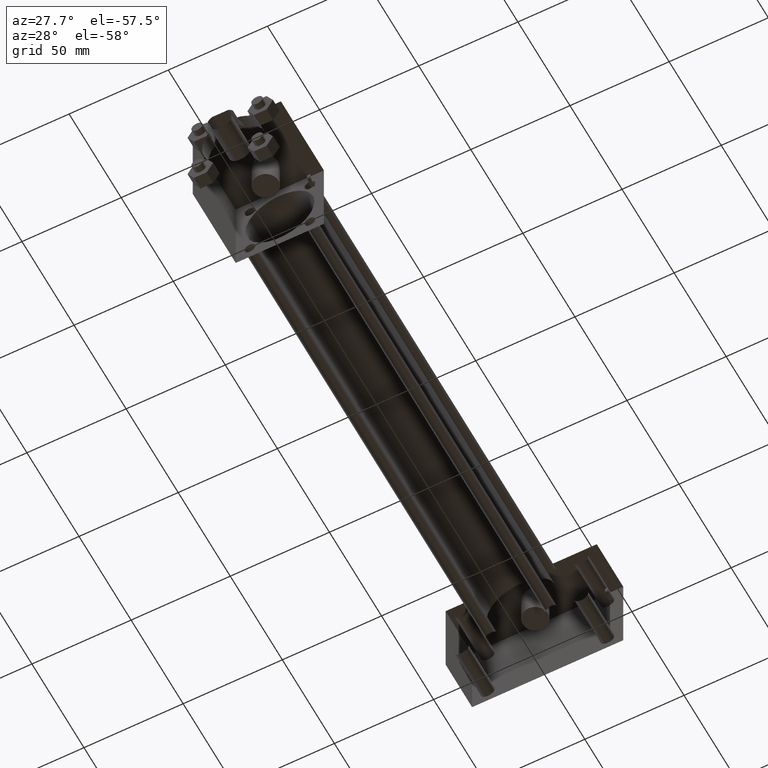
[diagram: clean part render]
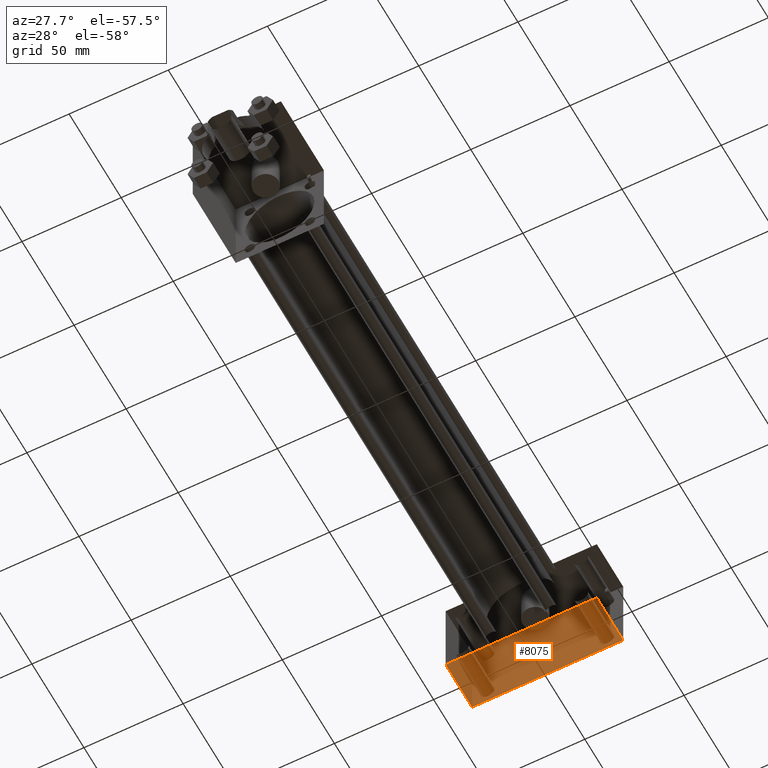
[diagram: same view with one face highlighted and labeled with its STEP entity id]
A machine part, auxiliary view. The second image highlights one B-rep face of the part: STEP entity #8075.
In plain terms, the highlighted planar face has unit normal (0, 0, -1).
Its self-contained STEP definition (entity closure, byte-faithful):
#3442=EDGE_CURVE('',#3447,#3448,#3443,.T.);
#3443=LINE('',#3444,#3445);
#3444=CARTESIAN_POINT('',(-3.810000000E+001,2.889250000E+002,-2.222500000E+001));
#3445=VECTOR('',#3446,1.0E+000);
#3446=DIRECTION('',(1.0E+000,0.0E+000,0.0E+000));
#3447=VERTEX_POINT('',#3449);
#3448=VERTEX_POINT('',#3450);
#3449=CARTESIAN_POINT('',(-3.810000000E+001,2.889250000E+002,-2.222500000E+001));
#3450=CARTESIAN_POINT('',(3.810000000E+001,2.889250000E+002,-2.222500000E+001));
#3646=VERTEX_POINT('',#3648);
#3648=CARTESIAN_POINT('',(-3.810000000E+001,3.143250000E+002,-2.222500000E+001));
#3649=EDGE_CURVE('',#3646,#3447,#3650,.T.);
#3650=LINE('',#3651,#3652);
#3651=CARTESIAN_POINT('',(-3.810000000E+001,3.143250000E+002,-2.222500000E+001));
#3652=VECTOR('',#3653,1.0E+000);
#3653=DIRECTION('',(0.0E+000,-1.0E+000,0.0E+000));
#3688=EDGE_CURVE('',#3693,#3448,#3689,.T.);
#3689=LINE('',#3690,#3691);
#3690=CARTESIAN_POINT('',(3.810000000E+001,3.143250000E+002,-2.222500000E+001));
#3691=VECTOR('',#3692,1.0E+000);
#3692=DIRECTION('',(0.0E+000,-1.0E+000,0.0E+000));
#3693=VERTEX_POINT('',#3694);
#3694=CARTESIAN_POINT('',(3.810000000E+001,3.143250000E+002,-2.222500000E+001));
#3714=FACE_OUTER_BOUND('',#3716,.T.);
#3715=FACE_BOUND('',#3717,.T.);
#3716=EDGE_LOOP('',(#3718,#3719,#3720,#3721));
#3717=EDGE_LOOP('',(#3727));
#3718=ORIENTED_EDGE('',*,*,#3688,.T.);
#3719=ORIENTED_EDGE('',*,*,#3442,.F.);
#3720=ORIENTED_EDGE('',*,*,#3649,.F.);
#3721=ORIENTED_EDGE('',*,*,#3722,.T.);
#3722=EDGE_CURVE('',#3646,#3693,#3723,.T.);
#3723=LINE('',#3724,#3725);
#3724=CARTESIAN_POINT('',(-3.810000000E+001,3.143250000E+002,-2.222500000E+001));
#3725=VECTOR('',#3726,1.0E+000);
#3726=DIRECTION('',(1.0E+000,0.0E+000,0.0E+000));
#3727=ORIENTED_EDGE('',*,*,#3728,.T.);
#3728=EDGE_CURVE('',#3734,#3734,#3729,.T.);
#3729=CIRCLE('',#3730,2.778125000E+000);
#3730=AXIS2_PLACEMENT_3D('',#3731,#3732,#3733);
#3731=CARTESIAN_POINT('',(0.000000000E+000,3.024187500E+002,-2.222500000E+001));
#3732=DIRECTION('',(0.0E+000,0.0E+000,1.0E+000));
#3733=DIRECTION('',(0.0E+000,1.0E+000,0.0E+000));
#3734=VERTEX_POINT('',#3735);
#3735=CARTESIAN_POINT('',(0.000000000E+000,3.051968750E+002,-2.222500000E+001));
#3736=PLANE('',#3737);
#3737=AXIS2_PLACEMENT_3D('',#3738,#3739,#3740);
#3738=CARTESIAN_POINT('',(-3.810000000E+001,3.143250000E+002,-2.222500000E+001));
#3739=DIRECTION('',(0.0E+000,0.0E+000,-1.0E+000));
#3740=DIRECTION('',(-1.0E+000,0.0E+000,0.0E+000));
#8075=ADVANCED_FACE('',(#3714,#3715),#3736,.T.);